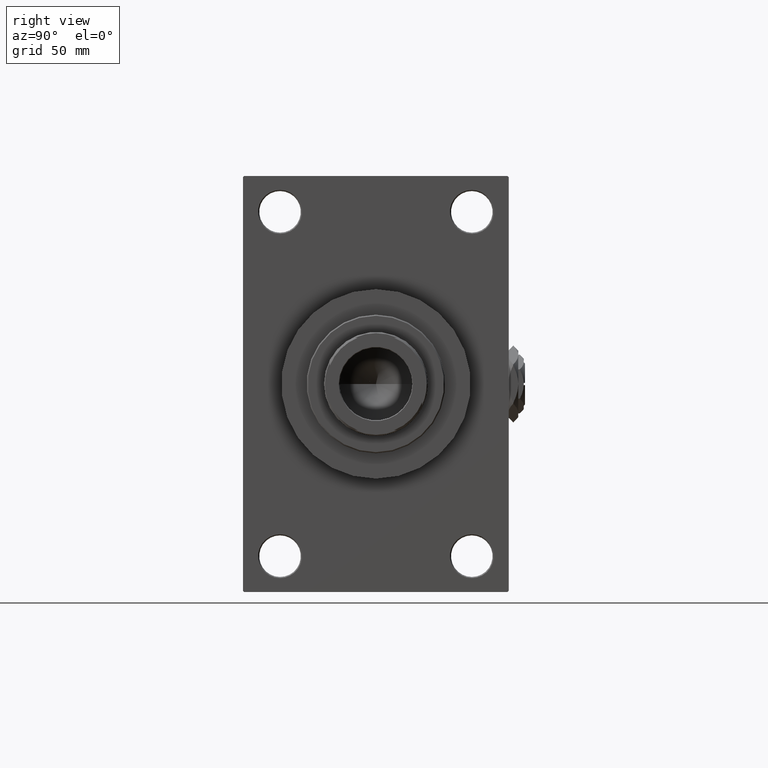
[diagram: clean part render]
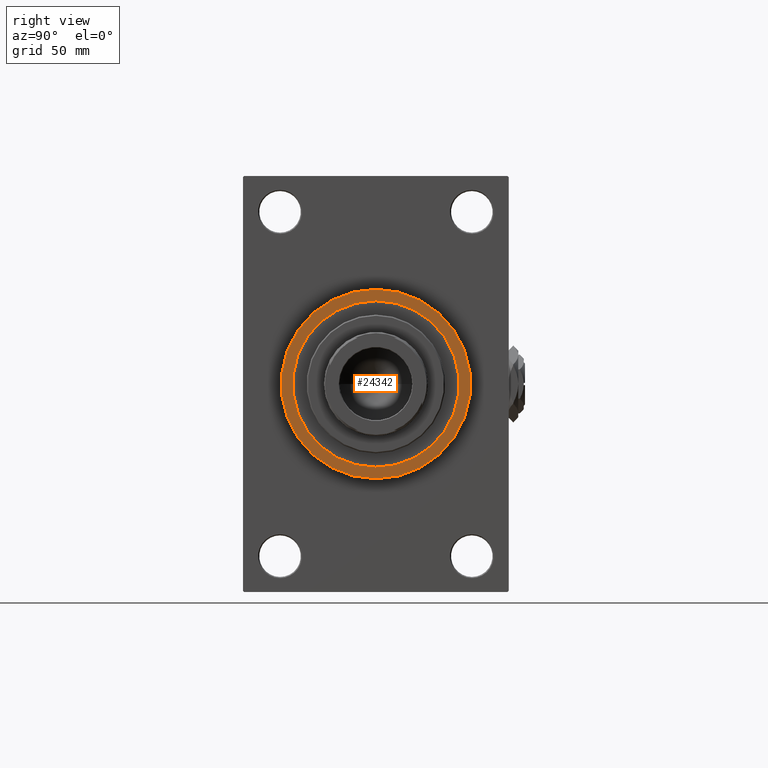
[diagram: same view with one face highlighted and labeled with its STEP entity id]
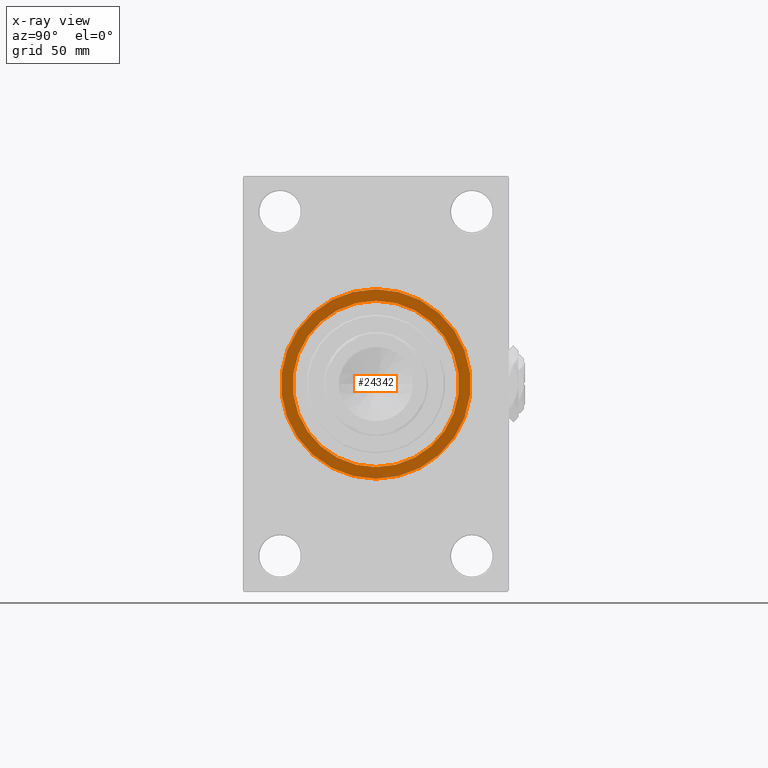
[diagram: x-ray of the same camera — body ghosted, the highlighted face saturated]
A machine part, right view. The second image highlights one B-rep face of the part: STEP entity #24342.
The next image is the same camera in x-ray: the body ghosted, the highlighted face saturated — about 0% of this face is hidden behind the body in this view.
In plain terms, the highlighted planar face has unit normal (1, 0, 0).
Its self-contained STEP definition (entity closure, byte-faithful):
#4384 = DIRECTION ( 'NONE',  ( 1.000000000000000000, 0.000000000000000000, 0.000000000000000000 ) ) ;
#4531 = ORIENTED_EDGE ( 'NONE', *, *, #7476, .F. ) ;
#6687 = DIRECTION ( 'NONE',  ( 1.000000000000000000, 0.000000000000000000, 0.000000000000000000 ) ) ;
#7476 = EDGE_CURVE ( 'NONE', #24356, #39283, #9946, .T. ) ;
#7692 = DIRECTION ( 'NONE',  ( 0.000000000000000000, 0.000000000000000000, -1.000000000000000000 ) ) ;
#7804 = CIRCLE ( 'NONE', #35143, 41.00000000000000000 ) ;
#9946 = CIRCLE ( 'NONE', #38105, 36.00000000000000000 ) ;
#10086 = CIRCLE ( 'NONE', #29430, 41.00000000000000000 ) ;
#11703 = AXIS2_PLACEMENT_3D ( 'NONE', #17157, #13874, #25212 ) ;
#11712 = ORIENTED_EDGE ( 'NONE', *, *, #43583, .F. ) ;
#12310 = CARTESIAN_POINT ( 'NONE',  ( 179.0000000000000000, 0.000000000000000000, 41.00000000000000000 ) ) ;
#13531 = AXIS2_PLACEMENT_3D ( 'NONE', #26332, #30123, #41936 ) ;
#13874 = DIRECTION ( 'NONE',  ( 1.000000000000000000, 0.000000000000000000, 0.000000000000000000 ) ) ;
#14223 = EDGE_CURVE ( 'NONE', #21355, #41032, #10086, .T. ) ;
#17157 = CARTESIAN_POINT ( 'NONE',  ( 179.0000000000000000, 0.000000000000000000, 0.000000000000000000 ) ) ;
#18244 = EDGE_LOOP ( 'NONE', ( #44724, #23667 ) ) ;
#19746 = DIRECTION ( 'NONE',  ( 0.000000000000000000, 0.000000000000000000, -1.000000000000000000 ) ) ;
#20563 = CIRCLE ( 'NONE', #11703, 36.00000000000000000 ) ;
#20643 = EDGE_CURVE ( 'NONE', #41032, #21355, #7804, .T. ) ;
#21355 = VERTEX_POINT ( 'NONE', #12310 ) ;
#23667 = ORIENTED_EDGE ( 'NONE', *, *, #20643, .T. ) ;
#24342 = ADVANCED_FACE ( 'NONE', ( #37173, #27690 ), #43040, .T. ) ;
#24356 = VERTEX_POINT ( 'NONE', #44967 ) ;
#25212 = DIRECTION ( 'NONE',  ( 0.000000000000000000, 0.000000000000000000, -1.000000000000000000 ) ) ;
#26332 = CARTESIAN_POINT ( 'NONE',  ( 179.0000000000000000, 0.000000000000000000, 0.000000000000000000 ) ) ;
#27110 = CARTESIAN_POINT ( 'NONE',  ( 179.0000000000000000, 5.021051876504148963E-15, -41.00000000000000000 ) ) ;
#27586 = CARTESIAN_POINT ( 'NONE',  ( 179.0000000000000000, 0.000000000000000000, 0.000000000000000000 ) ) ;
#27690 = FACE_OUTER_BOUND ( 'NONE', #18244, .T. ) ;
#29430 = AXIS2_PLACEMENT_3D ( 'NONE', #27586, #49737, #7692 ) ;
#29564 = EDGE_LOOP ( 'NONE', ( #11712, #4531 ) ) ;
#30123 = DIRECTION ( 'NONE',  ( 1.000000000000000000, 0.000000000000000000, 0.000000000000000000 ) ) ;
#30361 = CARTESIAN_POINT ( 'NONE',  ( 179.0000000000000000, 0.000000000000000000, 0.000000000000000000 ) ) ;
#35143 = AXIS2_PLACEMENT_3D ( 'NONE', #30361, #6687, #49714 ) ;
#37173 = FACE_BOUND ( 'NONE', #29564, .T. ) ;
#38105 = AXIS2_PLACEMENT_3D ( 'NONE', #38887, #4384, #19746 ) ;
#38887 = CARTESIAN_POINT ( 'NONE',  ( 179.0000000000000000, 0.000000000000000000, 0.000000000000000000 ) ) ;
#39283 = VERTEX_POINT ( 'NONE', #46960 ) ;
#41032 = VERTEX_POINT ( 'NONE', #27110 ) ;
#41936 = DIRECTION ( 'NONE',  ( 0.000000000000000000, 0.000000000000000000, -1.000000000000000000 ) ) ;
#43040 = PLANE ( 'NONE',  #13531 ) ;
#43583 = EDGE_CURVE ( 'NONE', #39283, #24356, #20563, .T. ) ;
#44724 = ORIENTED_EDGE ( 'NONE', *, *, #14223, .T. ) ;
#44967 = CARTESIAN_POINT ( 'NONE',  ( 179.0000000000000000, 4.408728476930470856E-15, 36.00000000000000000 ) ) ;
#46960 = CARTESIAN_POINT ( 'NONE',  ( 179.0000000000000000, 0.000000000000000000, -36.00000000000000000 ) ) ;
#49714 = DIRECTION ( 'NONE',  ( 0.000000000000000000, 0.000000000000000000, -1.000000000000000000 ) ) ;
#49737 = DIRECTION ( 'NONE',  ( 1.000000000000000000, 0.000000000000000000, 0.000000000000000000 ) ) ;